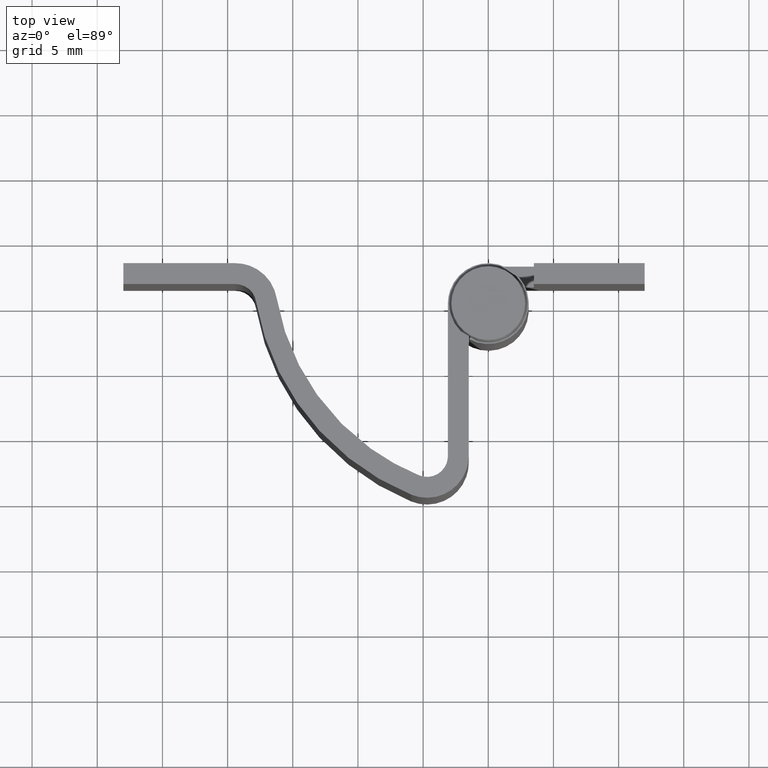
[diagram: clean part render]
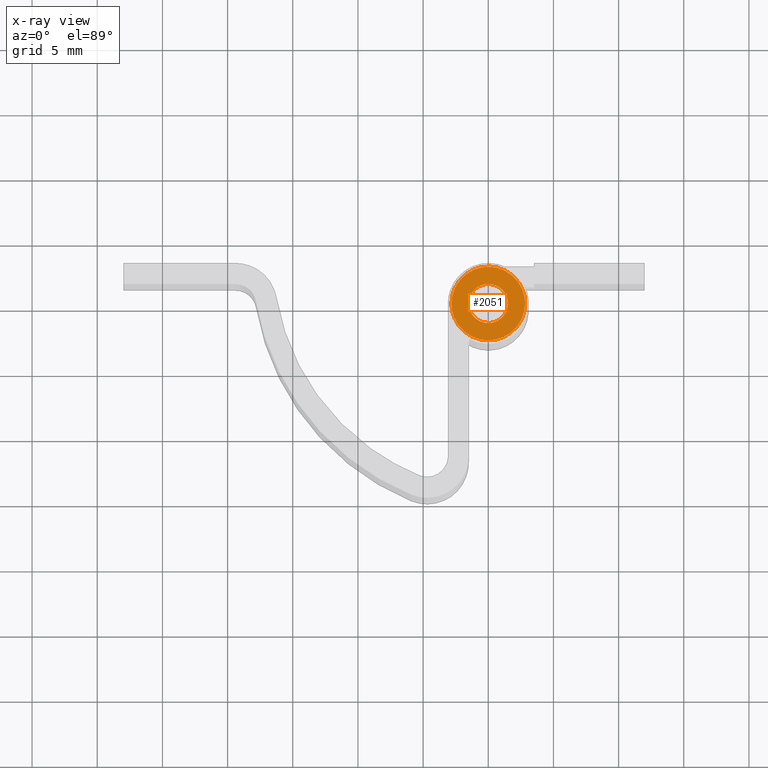
[diagram: x-ray — body ghosted, one internal face saturated and labeled with its STEP entity id]
A machine part, top view, then the same camera in x-ray: the body is ghosted and one INTERNAL B-rep face — a face not visible from any outside direction — is saturated and labeled: STEP entity #2051.
In plain terms, the highlighted face is a freeform B-spline surface patch.
Its self-contained STEP definition (entity closure, byte-faithful):
#1811=CARTESIAN_POINT('',(-0.177051351994381,1.489514289544718,33.000007999999987));
#1812=VERTEX_POINT('',#1811);
#1818=CARTESIAN_POINT('',(1.500000000000425,0.0,33.000007999999987));
#1819=VERTEX_POINT('',#1818);
#1820=CARTESIAN_POINT('',(-0.177051351994381,1.489514289544718,33.000008000000001));
#1821=CARTESIAN_POINT('',(-0.088836179487194,1.500000000000425,33.000008000000001));
#1822=CARTESIAN_POINT('',(0.0,1.500000000000425,33.000007999999987));
#1823=CARTESIAN_POINT('',(1.500000000000425,1.500000000000425,33.000007999999994));
#1824=CARTESIAN_POINT('',(1.500000000000425,0.0,33.000007999999987));
#1832=(BOUNDED_CURVE()B_SPLINE_CURVE(2,(#1820,#1821,#1822,#1823,#1824),.UNSPECIFIED.,.F.,.U.)B_SPLINE_CURVE_WITH_KNOTS((3,2,3),(0.229562473513555,0.250000000000000,0.500000000000000),.UNSPECIFIED.)CURVE()GEOMETRIC_REPRESENTATION_ITEM()RATIONAL_B_SPLINE_CURVE((0.956026754183791,0.976055948331200,1.0,0.707106781186547,1.0))REPRESENTATION_ITEM(''));
#1833=EDGE_CURVE('',#1812,#1819,#1832,.T.);
#1835=CARTESIAN_POINT('',(0.091572809346911,-1.497202197630386,33.000007999999987));
#1836=VERTEX_POINT('',#1835);
#1837=CARTESIAN_POINT('',(1.500000000000425,0.0,33.000007999999987));
#1838=CARTESIAN_POINT('',(1.500000000000425,-1.411059100274702,33.000008000000001));
#1839=CARTESIAN_POINT('',(0.091572809346911,-1.497202197630386,33.000007999999987));
#1847=(BOUNDED_CURVE()B_SPLINE_CURVE(2,(#1837,#1838,#1839),.UNSPECIFIED.,.F.,.U.)B_SPLINE_CURVE_WITH_KNOTS((3,3),(0.500000000000000,0.739332962231686),.UNSPECIFIED.)CURVE()GEOMETRIC_REPRESENTATION_ITEM()RATIONAL_B_SPLINE_CURVE((1.0,0.719603993295212,0.976072041651166))REPRESENTATION_ITEM(''));
#1848=EDGE_CURVE('',#1819,#1836,#1847,.T.);
#1922=CARTESIAN_POINT('',(-1.500000000000425,0.0,33.000007999999987));
#1923=VERTEX_POINT('',#1922);
#1924=CARTESIAN_POINT('',(0.091572809346911,-1.497202197630387,33.000007999999994));
#1925=CARTESIAN_POINT('',(0.045829144992628,-1.500000000000425,33.000008000000001));
#1926=CARTESIAN_POINT('',(0.0,-1.500000000000425,33.000007999999987));
#1927=CARTESIAN_POINT('',(-1.500000000000425,-1.500000000000425,33.000007999999994));
#1928=CARTESIAN_POINT('',(-1.500000000000425,0.0,33.000007999999987));
#1936=(BOUNDED_CURVE()B_SPLINE_CURVE(2,(#1924,#1925,#1926,#1927,#1928),.UNSPECIFIED.,.F.,.U.)B_SPLINE_CURVE_WITH_KNOTS((3,2,3),(0.739332962231687,0.750000000000000,1.0),.UNSPECIFIED.)CURVE()GEOMETRIC_REPRESENTATION_ITEM()RATIONAL_B_SPLINE_CURVE((0.976072041651167,0.987502787891336,1.0,0.707106781186547,1.0))REPRESENTATION_ITEM(''));
#1937=EDGE_CURVE('',#1836,#1923,#1936,.T.);
#1939=CARTESIAN_POINT('',(-1.500000000000425,0.0,33.000007999999987));
#1940=CARTESIAN_POINT('',(-1.500000000000425,1.332261788910845,33.000008000000001));
#1941=CARTESIAN_POINT('',(-0.177051351994381,1.489514289544718,33.000007999999994));
#1949=(BOUNDED_CURVE()B_SPLINE_CURVE(2,(#1939,#1940,#1941),.UNSPECIFIED.,.F.,.U.)B_SPLINE_CURVE_WITH_KNOTS((3,3),(0.0,0.229562473513555),.UNSPECIFIED.)CURVE()GEOMETRIC_REPRESENTATION_ITEM()RATIONAL_B_SPLINE_CURVE((1.0,0.731050832855347,0.956026754183791))REPRESENTATION_ITEM(''));
#1950=EDGE_CURVE('',#1923,#1812,#1949,.T.);
#2004=CARTESIAN_POINT('',(-3.110986930441753,-3.110986930441539,33.000007999999987));
#2005=CARTESIAN_POINT('',(3.110987132746625,-3.110986930441539,33.000007999999987));
#2006=CARTESIAN_POINT('',(-3.110986930441753,3.110987132746411,33.000007999999987));
#2007=CARTESIAN_POINT('',(3.110987132746625,3.110987132746411,33.000007999999987));
#2008=B_SPLINE_SURFACE_WITH_KNOTS('',1,1,((#2004,#2006),(#2005,#2007)),.UNSPECIFIED.,.F.,.F.,.U.,(2,2),(2,2),(0.0,6.221974063188378),(0.0,6.221974063187949),.UNSPECIFIED.);
#2009=CARTESIAN_POINT('',(-2.828427124746190,0.0,33.000007999999987));
#2010=VERTEX_POINT('',#2009);
#2011=CARTESIAN_POINT('',(2.828427124746190,0.0,33.000007999999987));
#2012=VERTEX_POINT('',#2011);
#2013=CARTESIAN_POINT('',(-2.828427124746190,0.0,33.000007999999987));
#2014=CARTESIAN_POINT('',(-2.828427124746189,2.828427124746189,33.000007999999994));
#2015=CARTESIAN_POINT('',(0.0,2.828427124746190,33.000007999999987));
#2016=CARTESIAN_POINT('',(2.828427124746189,2.828427124746189,33.000007999999994));
#2017=CARTESIAN_POINT('',(2.828427124746190,0.0,33.000007999999987));
#2025=(BOUNDED_CURVE()B_SPLINE_CURVE(2,(#2013,#2014,#2015,#2016,#2017),.UNSPECIFIED.,.F.,.U.)B_SPLINE_CURVE_WITH_KNOTS((3,2,3),(0.0,0.250000000000000,0.500000000000000),.UNSPECIFIED.)CURVE()GEOMETRIC_REPRESENTATION_ITEM()RATIONAL_B_SPLINE_CURVE((1.0,0.707106781186547,1.0,0.707106781186547,1.0))REPRESENTATION_ITEM(''));
#2026=EDGE_CURVE('',#2010,#2012,#2025,.T.);
#2027=ORIENTED_EDGE('',*,*,#2026,.T.);
#2028=CARTESIAN_POINT('',(2.828427124746190,0.0,33.000007999999987));
#2029=CARTESIAN_POINT('',(2.828427124746189,-2.828427124746189,33.000007999999994));
#2030=CARTESIAN_POINT('',(0.0,-2.828427124746190,33.000007999999987));
#2031=CARTESIAN_POINT('',(-2.828427124746189,-2.828427124746189,33.000007999999994));
#2032=CARTESIAN_POINT('',(-2.828427124746190,0.0,33.000007999999987));
#2040=(BOUNDED_CURVE()B_SPLINE_CURVE(2,(#2028,#2029,#2030,#2031,#2032),.UNSPECIFIED.,.F.,.U.)B_SPLINE_CURVE_WITH_KNOTS((3,2,3),(0.500000000000000,0.750000000000000,1.0),.UNSPECIFIED.)CURVE()GEOMETRIC_REPRESENTATION_ITEM()RATIONAL_B_SPLINE_CURVE((1.0,0.707106781186547,1.0,0.707106781186547,1.0))REPRESENTATION_ITEM(''));
#2041=EDGE_CURVE('',#2012,#2010,#2040,.T.);
#2042=ORIENTED_EDGE('',*,*,#2041,.T.);
#2043=EDGE_LOOP('',(#2027,#2042));
#2044=FACE_OUTER_BOUND('',#2043,.T.);
#2045=ORIENTED_EDGE('',*,*,#1848,.F.);
#2046=ORIENTED_EDGE('',*,*,#1833,.F.);
#2047=ORIENTED_EDGE('',*,*,#1950,.F.);
#2048=ORIENTED_EDGE('',*,*,#1937,.F.);
#2049=EDGE_LOOP('',(#2045,#2046,#2047,#2048));
#2050=FACE_BOUND('',#2049,.T.);
#2051=ADVANCED_FACE('',(#2044,#2050),#2008,.F.);